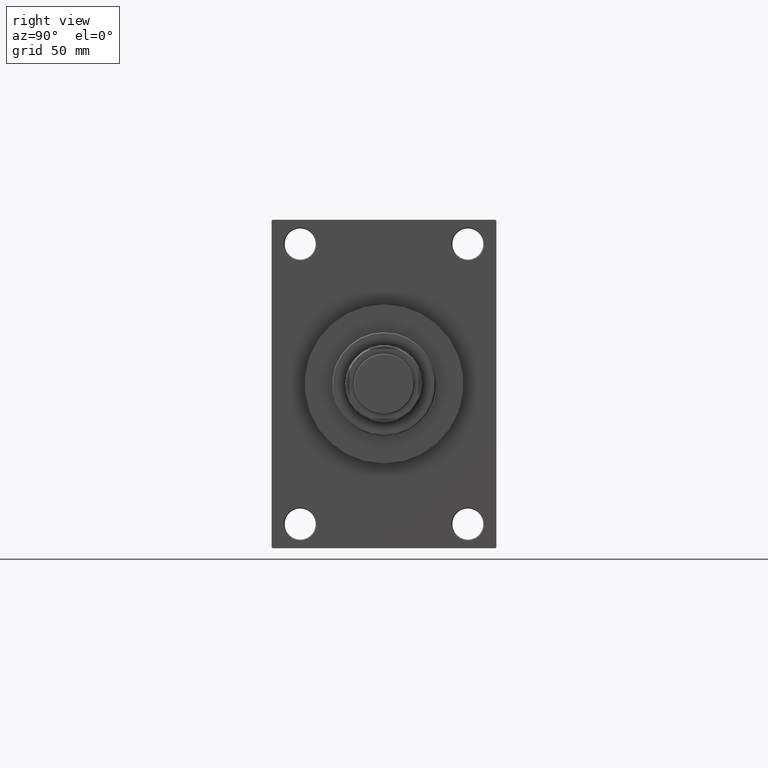
[diagram: clean part render]
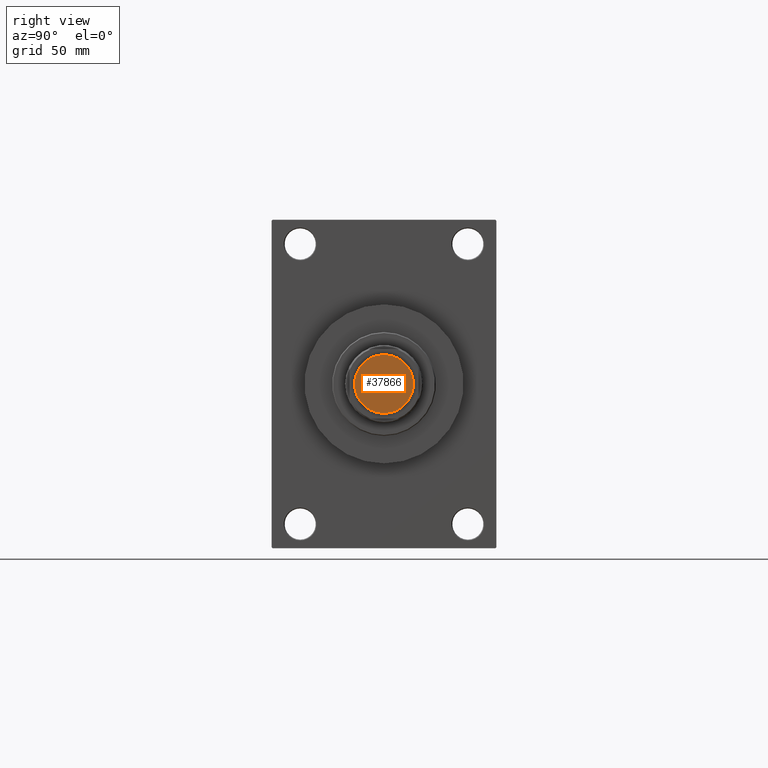
[diagram: same view with one face highlighted and labeled with its STEP entity id]
A machine part, right view. The second image highlights one B-rep face of the part: STEP entity #37866.
In plain terms, the highlighted planar face has unit normal (1, 0, 0).
Its self-contained STEP definition (entity closure, byte-faithful):
#1089 = ORIENTED_EDGE ( 'NONE', *, *, #3074, .T. ) ;
#1846 = EDGE_CURVE ( 'NONE', #40007, #29685, #9125, .T. ) ;
#3074 = EDGE_CURVE ( 'NONE', #29685, #40007, #10605, .T. ) ;
#3773 = CARTESIAN_POINT ( 'NONE',  ( -17.00000000000000355, 2.112515728529184856E-15, 0.000000000000000000 ) ) ;
#3996 = DIRECTION ( 'NONE',  ( 1.000000000000000000, 0.000000000000000000, 0.000000000000000000 ) ) ;
#5996 = DIRECTION ( 'NONE',  ( 1.000000000000000000, 0.000000000000000000, 0.000000000000000000 ) ) ;
#9125 = CIRCLE ( 'NONE', #42542, 17.00000000000000355 ) ;
#9668 = DIRECTION ( 'NONE',  ( 1.000000000000000000, 0.000000000000000000, -0.000000000000000000 ) ) ;
#10605 = CIRCLE ( 'NONE', #37765, 17.00000000000000355 ) ;
#10812 = DIRECTION ( 'NONE',  ( 0.000000000000000000, 0.000000000000000000, 1.000000000000000000 ) ) ;
#13569 = PLANE ( 'NONE',  #46758 ) ;
#17059 = EDGE_LOOP ( 'NONE', ( #1089, #42780 ) ) ;
#20640 = CARTESIAN_POINT ( 'NONE',  ( 0.000000000000000000, 0.000000000000000000, 0.000000000000000000 ) ) ;
#25914 = CARTESIAN_POINT ( 'NONE',  ( 0.000000000000000000, 0.000000000000000000, 0.000000000000000000 ) ) ;
#29685 = VERTEX_POINT ( 'NONE', #39120 ) ;
#32534 = DIRECTION ( 'NONE',  ( 0.000000000000000000, 0.000000000000000000, 1.000000000000000000 ) ) ;
#35221 = FACE_OUTER_BOUND ( 'NONE', #17059, .T. ) ;
#37765 = AXIS2_PLACEMENT_3D ( 'NONE', #25914, #10812, #3996 ) ;
#37866 = ADVANCED_FACE ( 'NONE', ( #35221 ), #13569, .T. ) ;
#39120 = CARTESIAN_POINT ( 'NONE',  ( 17.00000000000000355, 0.000000000000000000, 0.000000000000000000 ) ) ;
#39328 = CARTESIAN_POINT ( 'NONE',  ( 0.000000000000000000, 0.000000000000000000, 0.000000000000000000 ) ) ;
#40007 = VERTEX_POINT ( 'NONE', #3773 ) ;
#42542 = AXIS2_PLACEMENT_3D ( 'NONE', #39328, #32534, #5996 ) ;
#42780 = ORIENTED_EDGE ( 'NONE', *, *, #1846, .T. ) ;
#46658 = DIRECTION ( 'NONE',  ( 0.000000000000000000, 0.000000000000000000, 1.000000000000000000 ) ) ;
#46758 = AXIS2_PLACEMENT_3D ( 'NONE', #20640, #46658, #9668 ) ;